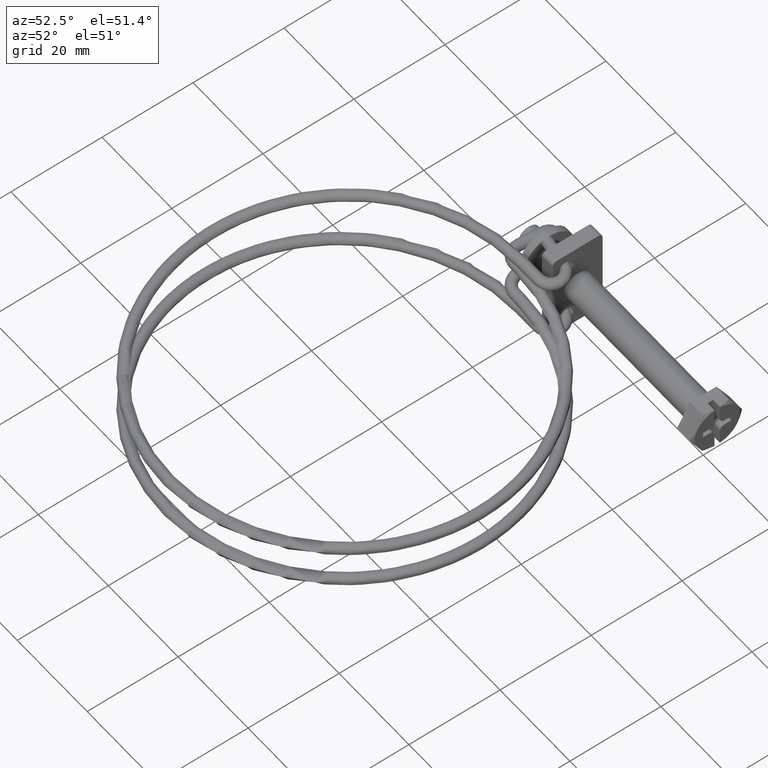
[diagram: clean part render]
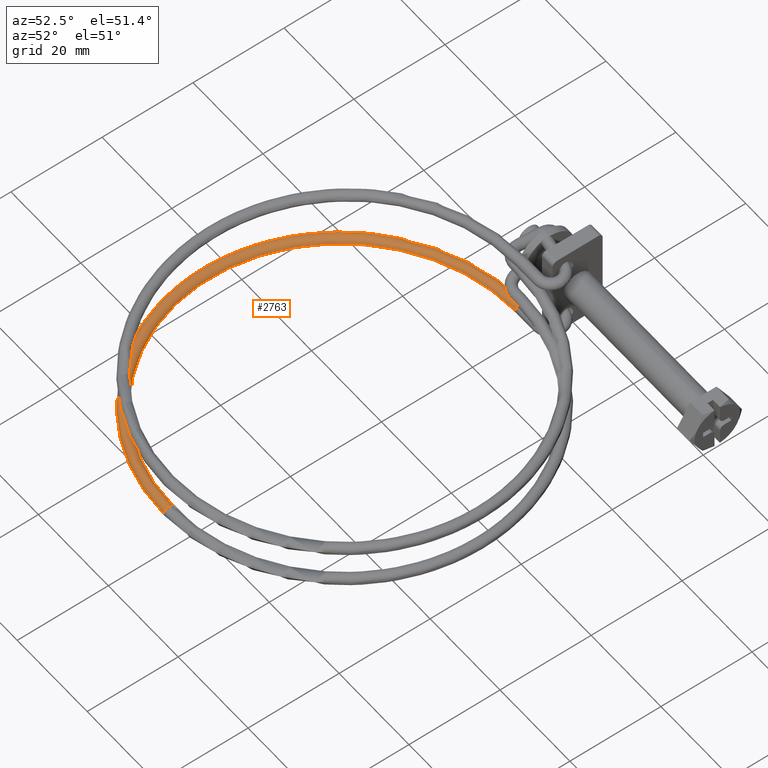
[diagram: same view with one face highlighted and labeled with its STEP entity id]
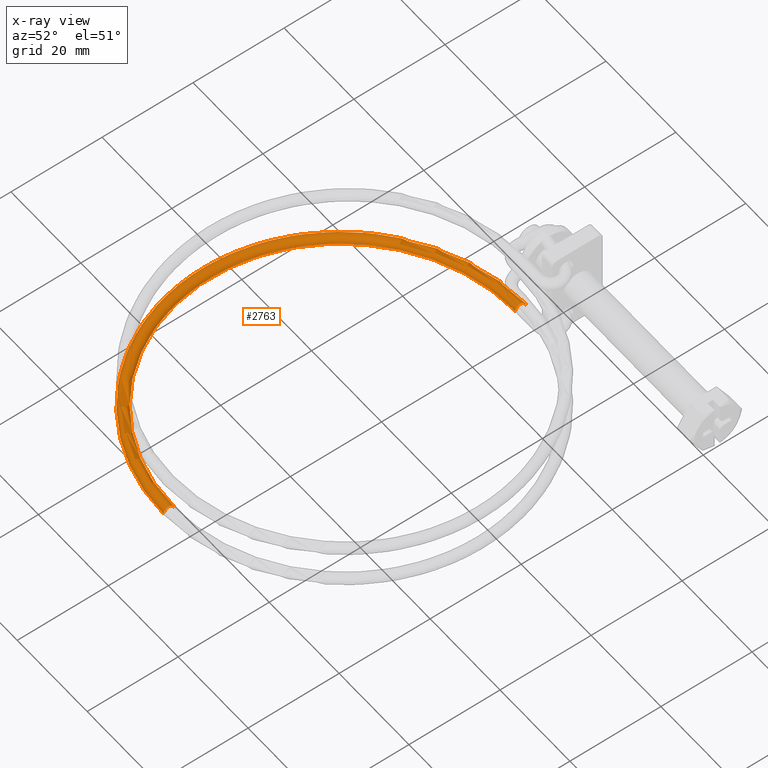
[diagram: x-ray of the same camera — body ghosted, the highlighted face saturated]
A machine part, auxiliary view. The second image highlights one B-rep face of the part: STEP entity #2763.
The next image is the same camera in x-ray: the body ghosted, the highlighted face saturated — about 0% of this face is hidden behind the body in this view.
In plain terms, the highlighted toroidal blend (fillet) surface has major radius 38.6679 mm and minor (blend) radius 1.15 mm.
Its self-contained STEP definition (entity closure, byte-faithful):
#75 = DIRECTION ( 'NONE',  ( 0.0000000000000000000, 0.9995382086116260100, -0.03038699599272083600 ) ) ;
#105 = DIRECTION ( 'NONE',  ( -1.000000000000000000, -8.541259029660799100E-016, -7.287247824286586400E-016 ) ) ;
#157 = VERTEX_POINT ( 'NONE', #2045 ) ;
#167 = ORIENTED_EDGE ( 'NONE', *, *, #1884, .F. ) ;
#290 = CARTESIAN_POINT ( 'NONE',  ( 4.795900000000003200, -85.21164372549098700, -4.200000000000001100 ) ) ;
#333 = TOROIDAL_SURFACE ( 'NONE', #2238, 38.66785648313077700, 1.149999999999999900 ) ;
#394 = CIRCLE ( 'NONE', #2065, 37.51785648313079200 ) ;
#467 = ORIENTED_EDGE ( 'NONE', *, *, #1745, .F. ) ;
#477 = CARTESIAN_POINT ( 'NONE',  ( 4.795900000000539600, -7.911643725490996800, -6.550000000000001600 ) ) ;
#520 = DIRECTION ( 'NONE',  ( 1.508455196501577500E-014, -0.9945218953682732900, 0.1045284632676544400 ) ) ;
#535 = ORIENTED_EDGE ( 'NONE', *, *, #1503, .T. ) ;
#561 = CARTESIAN_POINT ( 'NONE',  ( 4.795900000000020000, -86.36111266539437300, -4.165054954608373300 ) ) ;
#592 = CIRCLE ( 'NONE', #1817, 1.150000000000000400 ) ;
#668 = EDGE_CURVE ( 'NONE', #157, #1666, #1393, .T. ) ;
#671 = CARTESIAN_POINT ( 'NONE',  ( 4.795900000000003200, -85.21164372549098700, -4.200000000000001100 ) ) ;
#717 = EDGE_LOOP ( 'NONE', ( #467, #2634, #167, #1608, #1962, #535 ) ) ;
#719 = DIRECTION ( 'NONE',  ( -7.542275982507854200E-016, 0.9990349513544672900, 0.04392227193779064300 ) ) ;
#725 = VERTEX_POINT ( 'NONE', #1870 ) ;
#841 = CARTESIAN_POINT ( 'NONE',  ( 4.795899999999999600, -46.56164372549100200, -5.375000000000000900 ) ) ;
#913 = VERTEX_POINT ( 'NONE', #1572 ) ;
#924 = DIRECTION ( 'NONE',  ( 1.508455196501577500E-014, -0.9945218953682732900, 0.1045284632676544400 ) ) ;
#1092 = DIRECTION ( 'NONE',  ( 0.0000000000000000000, 0.9995382086116259000, -0.03038699599272084300 ) ) ;
#1160 = CIRCLE ( 'NONE', #2379, 39.81785648313078200 ) ;
#1196 = CIRCLE ( 'NONE', #2759, 1.149999999999995500 ) ;
#1393 = CIRCLE ( 'NONE', #1545, 1.149999999999995500 ) ;
#1435 = VERTEX_POINT ( 'NONE', #1501 ) ;
#1496 = CARTESIAN_POINT ( 'NONE',  ( 4.795899999999985400, -84.06217478558761500, -4.234945045391629700 ) ) ;
#1501 = CARTESIAN_POINT ( 'NONE',  ( 4.795900000000538700, -6.761643725490996500, -6.550000000000000700 ) ) ;
#1503 = EDGE_CURVE ( 'NONE', #1435, #913, #1772, .T. ) ;
#1515 = DIRECTION ( 'NONE',  ( -0.0000000000000000000, -0.03038699599272085000, -0.9995382086116261200 ) ) ;
#1540 = CARTESIAN_POINT ( 'NONE',  ( 4.795900000000539600, -7.911643725490996800, -6.550000000000001600 ) ) ;
#1545 = AXIS2_PLACEMENT_3D ( 'NONE', #671, #2354, #924 ) ;
#1572 = CARTESIAN_POINT ( 'NONE',  ( 4.795900000000538700, -6.762174785587632200, -6.584945045391629400 ) ) ;
#1608 = ORIENTED_EDGE ( 'NONE', *, *, #2742, .T. ) ;
#1666 = VERTEX_POINT ( 'NONE', #561 ) ;
#1745 = EDGE_CURVE ( 'NONE', #1666, #913, #1160, .T. ) ;
#1772 = CIRCLE ( 'NONE', #2705, 1.150000000000000400 ) ;
#1776 = DIRECTION ( 'NONE',  ( -7.542275982507854200E-016, 0.9990349513544672900, 0.04392227193779064300 ) ) ;
#1802 = DIRECTION ( 'NONE',  ( 0.0000000000000000000, 0.9995382086116260100, -0.03038699599272085000 ) ) ;
#1817 = AXIS2_PLACEMENT_3D ( 'NONE', #477, #2151, #719 ) ;
#1870 = CARTESIAN_POINT ( 'NONE',  ( 4.795900000000540500, -9.061112665394370300, -6.515054954608372900 ) ) ;
#1884 = EDGE_CURVE ( 'NONE', #2606, #157, #1196, .T. ) ;
#1951 = DIRECTION ( 'NONE',  ( 1.000000000000000000, 1.489016563090529400E-014, -1.207367539279857700E-015 ) ) ;
#1962 = ORIENTED_EDGE ( 'NONE', *, *, #2504, .T. ) ;
#2045 = CARTESIAN_POINT ( 'NONE',  ( 4.795899999999985400, -84.06164372549099500, -4.200000000000001100 ) ) ;
#2065 = AXIS2_PLACEMENT_3D ( 'NONE', #841, #2535, #1092 ) ;
#2151 = DIRECTION ( 'NONE',  ( -1.000000000000000000, -8.541259029660799100E-016, -7.287247824286586400E-016 ) ) ;
#2238 = AXIS2_PLACEMENT_3D ( 'NONE', #2779, #3020, #1802 ) ;
#2354 = DIRECTION ( 'NONE',  ( 1.000000000000000000, 1.489016563090529400E-014, -1.207367539279857700E-015 ) ) ;
#2379 = AXIS2_PLACEMENT_3D ( 'NONE', #2965, #1515, #75 ) ;
#2504 = EDGE_CURVE ( 'NONE', #725, #1435, #592, .T. ) ;
#2535 = DIRECTION ( 'NONE',  ( -0.0000000000000000000, -0.03038699599272085000, -0.9995382086116261200 ) ) ;
#2606 = VERTEX_POINT ( 'NONE', #1496 ) ;
#2634 = ORIENTED_EDGE ( 'NONE', *, *, #668, .F. ) ;
#2705 = AXIS2_PLACEMENT_3D ( 'NONE', #1540, #105, #1776 ) ;
#2742 = EDGE_CURVE ( 'NONE', #2606, #725, #394, .T. ) ;
#2759 = AXIS2_PLACEMENT_3D ( 'NONE', #290, #1951, #520 ) ;
#2763 = ADVANCED_FACE ( 'NONE', ( #2814 ), #333, .T. ) ;
#2779 = CARTESIAN_POINT ( 'NONE',  ( 4.795899999999999600, -46.56164372549100200, -5.375000000000000900 ) ) ;
#2814 = FACE_OUTER_BOUND ( 'NONE', #717, .T. ) ;
#2965 = CARTESIAN_POINT ( 'NONE',  ( 4.795899999999999600, -46.56164372549100200, -5.375000000000000900 ) ) ;
#3020 = DIRECTION ( 'NONE',  ( -0.0000000000000000000, -0.03038699599272085000, -0.9995382086116261200 ) ) ;